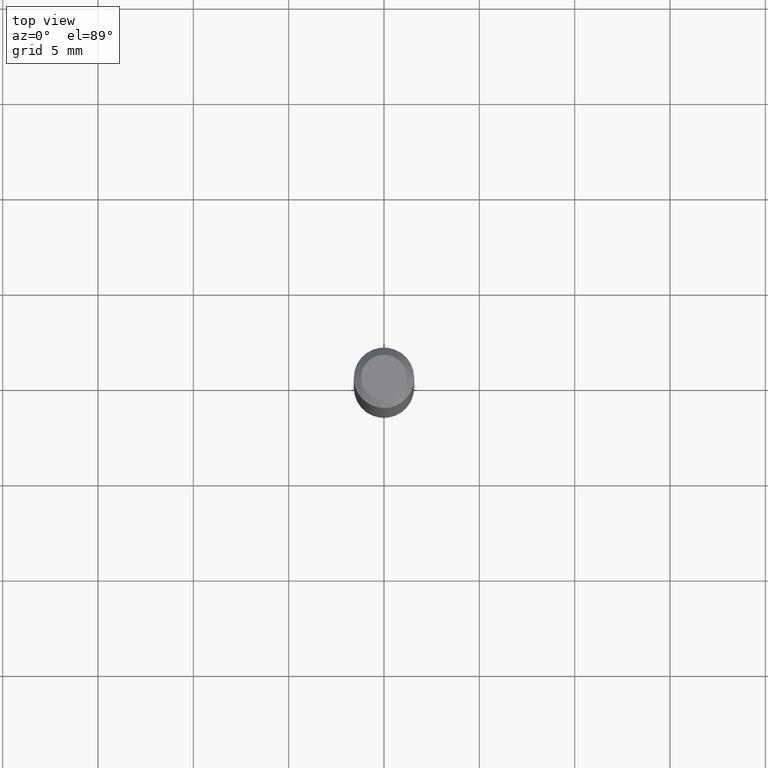
[diagram: clean part render]
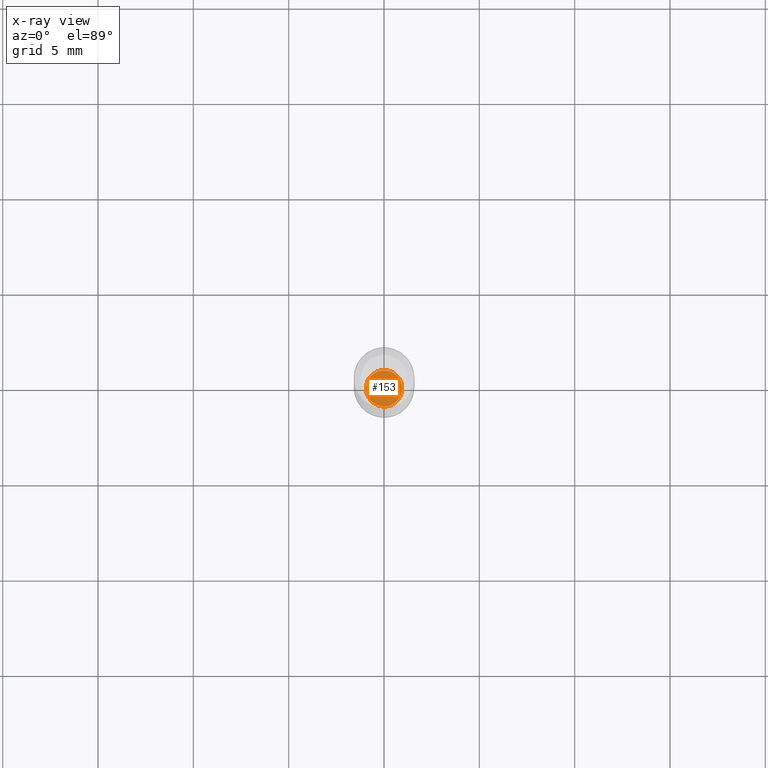
[diagram: x-ray — body ghosted, one internal face saturated and labeled with its STEP entity id]
A machine part, top view, then the same camera in x-ray: the body is ghosted and one INTERNAL B-rep face — a face not visible from any outside direction — is saturated and labeled: STEP entity #153.
In plain terms, the highlighted planar face has unit normal (0, -0, -1).
Its self-contained STEP definition (entity closure, byte-faithful):
#50 = DIRECTION ( 'NONE',  ( 1.000000000000000000, -6.982962677686268288E-15, 0.000000000000000000 ) ) ;
#66 = DIRECTION ( 'NONE',  ( 2.438088387897960049E-29, -3.491481338843145188E-15, -1.000000000000000000 ) ) ;
#93 = CIRCLE ( 'NONE', #272, 0.03749999999999999861 ) ;
#111 = PLANE ( 'NONE',  #408 ) ;
#153 = ADVANCED_FACE ( 'NONE', ( #212 ), #111, .F. ) ;
#180 = CARTESIAN_POINT ( 'NONE',  ( 2.618611004132661617E-16, 0.03749999999999554384, -1.275000000000000133 ) ) ;
#187 = CARTESIAN_POINT ( 'NONE',  ( 0.03749999999999999861, -4.713499807438246596E-15, -1.275000000000000133 ) ) ;
#202 = CARTESIAN_POINT ( 'NONE',  ( -0.03749999999999999861, -4.577976831734827473E-15, -1.275000000000000133 ) ) ;
#212 = FACE_OUTER_BOUND ( 'NONE', #410, .T. ) ;
#223 = VERTEX_POINT ( 'NONE', #187 ) ;
#242 = DIRECTION ( 'NONE',  ( -2.445468806185136597E-29, 3.491481338843145583E-15, 1.000000000000000000 ) ) ;
#244 = CARTESIAN_POINT ( 'NONE',  ( 3.117972727886049049E-29, -4.451638707025011594E-15, -1.275000000000000133 ) ) ;
#272 = AXIS2_PLACEMENT_3D ( 'NONE', #244, #388, #324 ) ;
#324 = DIRECTION ( 'NONE',  ( 1.000000000000000000, -6.982962677686268288E-15, 0.000000000000000000 ) ) ;
#332 = EDGE_CURVE ( 'NONE', #223, #448, #93, .T. ) ;
#343 = CIRCLE ( 'NONE', #396, 0.03749999999999999861 ) ;
#368 = DIRECTION ( 'NONE',  ( -1.000000000000000000, 6.982962677686265922E-15, -4.876176775795935793E-29 ) ) ;
#388 = DIRECTION ( 'NONE',  ( -2.445468806185136597E-29, 3.491481338843145583E-15, 1.000000000000000000 ) ) ;
#392 = CARTESIAN_POINT ( 'NONE',  ( 3.117972727886049049E-29, -4.451638707025011594E-15, -1.275000000000000133 ) ) ;
#396 = AXIS2_PLACEMENT_3D ( 'NONE', #392, #242, #50 ) ;
#408 = AXIS2_PLACEMENT_3D ( 'NONE', #180, #66, #368 ) ;
#410 = EDGE_LOOP ( 'NONE', ( #444, #456 ) ) ;
#444 = ORIENTED_EDGE ( 'NONE', *, *, #332, .T. ) ;
#445 = EDGE_CURVE ( 'NONE', #448, #223, #343, .T. ) ;
#448 = VERTEX_POINT ( 'NONE', #202 ) ;
#456 = ORIENTED_EDGE ( 'NONE', *, *, #445, .T. ) ;